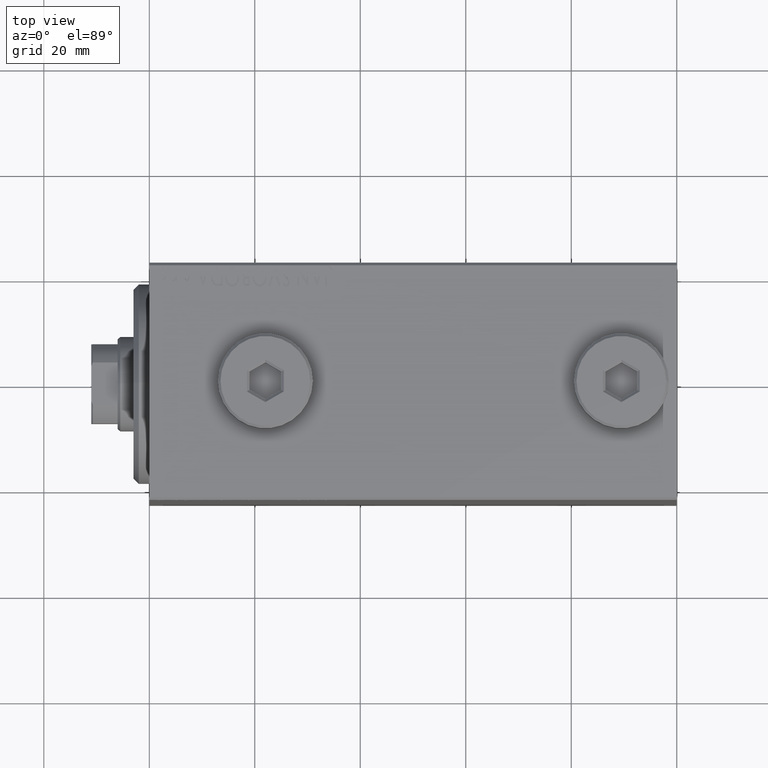
[diagram: clean part render]
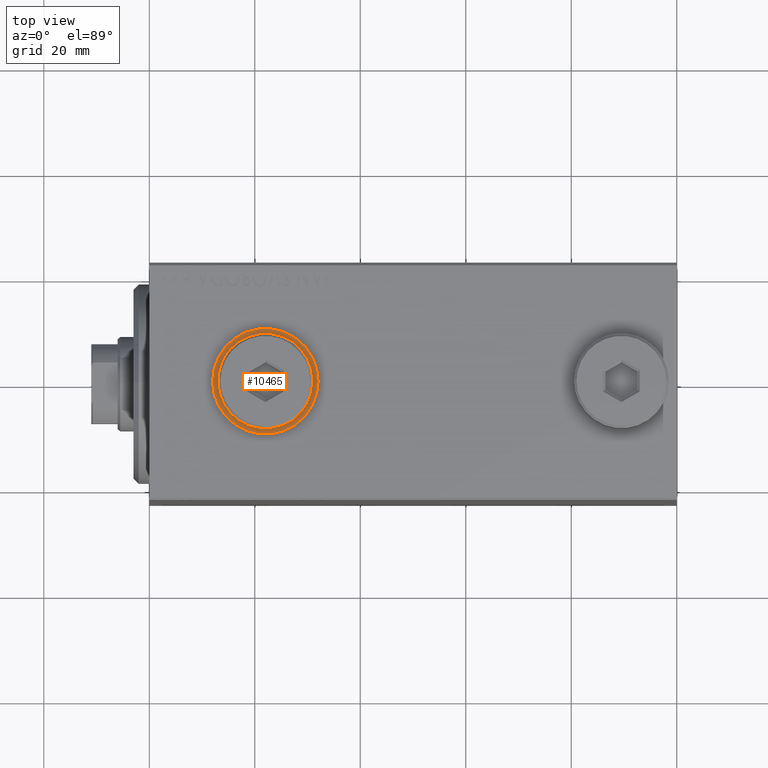
[diagram: same view with one face highlighted and labeled with its STEP entity id]
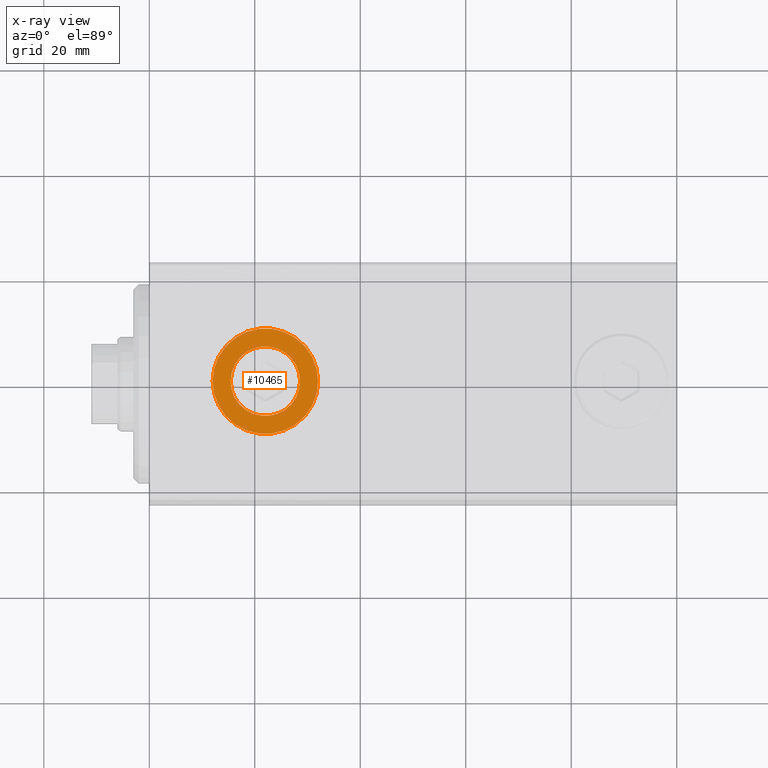
[diagram: x-ray of the same camera — body ghosted, the highlighted face saturated]
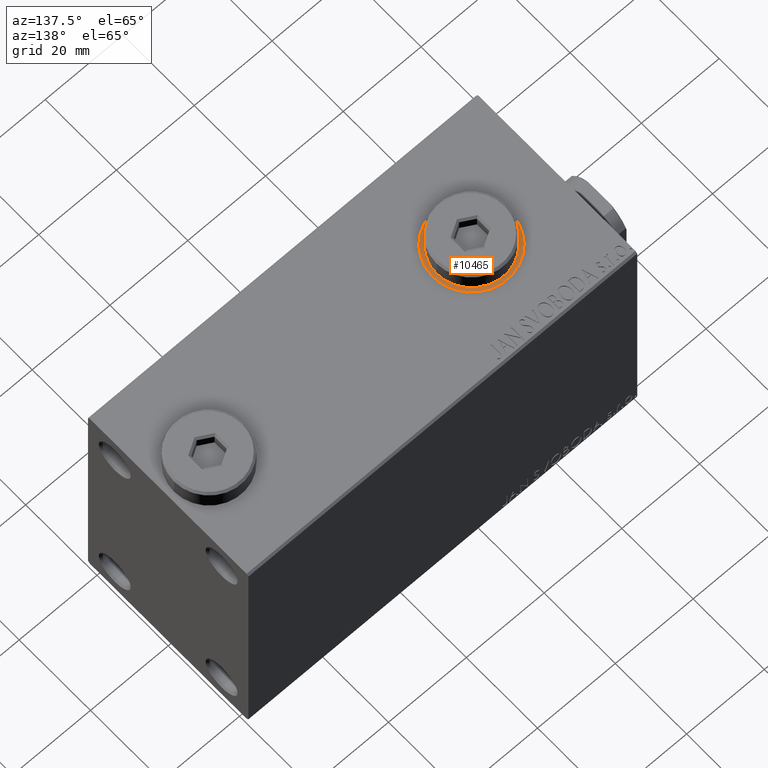
[diagram: same view with one face highlighted and labeled with its STEP entity id]
A machine part, top view. The second image highlights one B-rep face of the part: STEP entity #10465.
The next image is the same camera in x-ray: the body ghosted, the highlighted face saturated — about 0% of this face is hidden behind the body in this view.
A second angle (auxiliary view) of the same face is appended — the face is thin or edge-on in the first view.
In plain terms, the highlighted planar face has unit normal (0, 0, 1).
Its self-contained STEP definition (entity closure, byte-faithful):
#869 = ORIENTED_EDGE ( 'NONE', *, *, #44276, .F. ) ;
#3607 = DIRECTION ( 'NONE',  ( 1.000000000000000000, 0.000000000000000000, -0.000000000000000000 ) ) ;
#4374 = AXIS2_PLACEMENT_3D ( 'NONE', #44340, #15778, #16004 ) ;
#7357 = VERTEX_POINT ( 'NONE', #34838 ) ;
#9279 = DIRECTION ( 'NONE',  ( 1.000000000000000000, 0.000000000000000000, 0.000000000000000000 ) ) ;
#9674 = EDGE_CURVE ( 'NONE', #7357, #44250, #20522, .T. ) ;
#10028 = EDGE_LOOP ( 'NONE', ( #20440, #40390 ) ) ;
#10280 = CARTESIAN_POINT ( 'NONE',  ( 22.00000000000000000, -5.011423375044109822E-15, 32.39999999999998437 ) ) ;
#10465 = ADVANCED_FACE ( 'NONE', ( #21331, #31215 ), #13740, .T. ) ;
#11119 = ORIENTED_EDGE ( 'NONE', *, *, #16990, .F. ) ;
#13740 = PLANE ( 'NONE',  #32335 ) ;
#15778 = DIRECTION ( 'NONE',  ( 0.000000000000000000, 0.000000000000000000, 1.000000000000000000 ) ) ;
#16004 = DIRECTION ( 'NONE',  ( 1.000000000000000000, 0.000000000000000000, 0.000000000000000000 ) ) ;
#16023 = VERTEX_POINT ( 'NONE', #34831 ) ;
#16990 = EDGE_CURVE ( 'NONE', #33790, #16023, #43189, .T. ) ;
#17801 = CARTESIAN_POINT ( 'NONE',  ( 22.00000000000000000, -5.011423375044109822E-15, 32.39999999999998437 ) ) ;
#18643 = DIRECTION ( 'NONE',  ( 0.000000000000000000, 0.000000000000000000, 1.000000000000000000 ) ) ;
#19325 = CARTESIAN_POINT ( 'NONE',  ( 22.00000000000000000, -5.011423375044109822E-15, 32.39999999999998437 ) ) ;
#20440 = ORIENTED_EDGE ( 'NONE', *, *, #37642, .T. ) ;
#20522 = CIRCLE ( 'NONE', #4374, 9.999999999999994671 ) ;
#21331 = FACE_BOUND ( 'NONE', #42847, .T. ) ;
#24312 = DIRECTION ( 'NONE',  ( 0.000000000000000000, 0.000000000000000000, 1.000000000000000000 ) ) ;
#25460 = AXIS2_PLACEMENT_3D ( 'NONE', #17801, #41771, #31376 ) ;
#27432 = DIRECTION ( 'NONE',  ( 0.000000000000000000, 0.000000000000000000, 1.000000000000000000 ) ) ;
#30007 = CARTESIAN_POINT ( 'NONE',  ( 22.00000000000000000, -5.011423375044109822E-15, 32.39999999999998437 ) ) ;
#31097 = AXIS2_PLACEMENT_3D ( 'NONE', #30007, #27432, #9279 ) ;
#31215 = FACE_OUTER_BOUND ( 'NONE', #10028, .T. ) ;
#31376 = DIRECTION ( 'NONE',  ( 1.000000000000000000, 0.000000000000000000, 0.000000000000000000 ) ) ;
#32335 = AXIS2_PLACEMENT_3D ( 'NONE', #10280, #24312, #3607 ) ;
#33542 = CIRCLE ( 'NONE', #25460, 6.580000000000002736 ) ;
#33790 = VERTEX_POINT ( 'NONE', #34735 ) ;
#34735 = CARTESIAN_POINT ( 'NONE',  ( 15.41999999999999638, -4.205605781205150780E-15, 32.39999999999998437 ) ) ;
#34831 = CARTESIAN_POINT ( 'NONE',  ( 28.58000000000000185, -5.011423375044109822E-15, 32.39999999999998437 ) ) ;
#34838 = CARTESIAN_POINT ( 'NONE',  ( 12.00000000000000355, -3.786776575896757552E-15, 32.39999999999998437 ) ) ;
#37015 = CIRCLE ( 'NONE', #31097, 9.999999999999994671 ) ;
#37642 = EDGE_CURVE ( 'NONE', #44250, #7357, #37015, .T. ) ;
#38768 = CARTESIAN_POINT ( 'NONE',  ( 31.99999999999999289, -5.011423375044109822E-15, 32.39999999999998437 ) ) ;
#38772 = AXIS2_PLACEMENT_3D ( 'NONE', #19325, #18643, #43296 ) ;
#40390 = ORIENTED_EDGE ( 'NONE', *, *, #9674, .T. ) ;
#41771 = DIRECTION ( 'NONE',  ( 0.000000000000000000, 0.000000000000000000, 1.000000000000000000 ) ) ;
#42847 = EDGE_LOOP ( 'NONE', ( #869, #11119 ) ) ;
#43189 = CIRCLE ( 'NONE', #38772, 6.580000000000002736 ) ;
#43296 = DIRECTION ( 'NONE',  ( 1.000000000000000000, 0.000000000000000000, 0.000000000000000000 ) ) ;
#44250 = VERTEX_POINT ( 'NONE', #38768 ) ;
#44276 = EDGE_CURVE ( 'NONE', #16023, #33790, #33542, .T. ) ;
#44340 = CARTESIAN_POINT ( 'NONE',  ( 22.00000000000000000, -5.011423375044109822E-15, 32.39999999999998437 ) ) ;